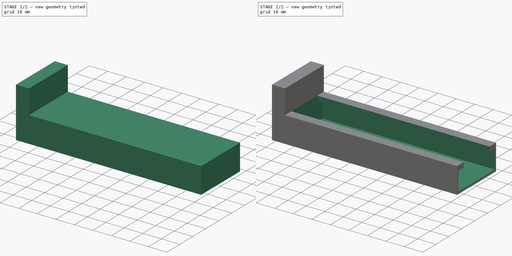
[diagram: build sequence overview — one tinted view per stage of 2, left to right]
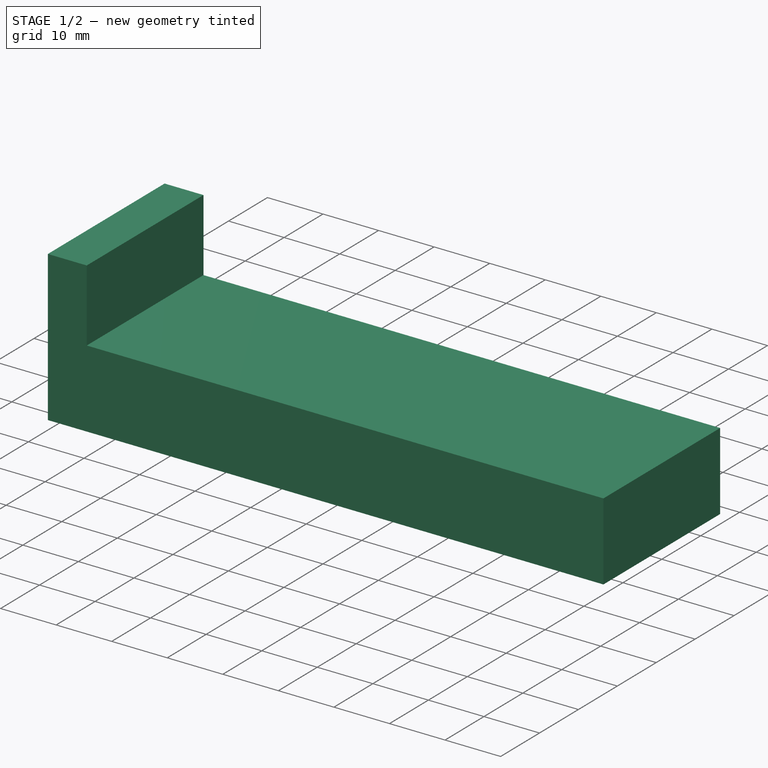
[diagram: stage 1 of 2 — iso view after this stage's code; geometry added in this stage tinted green]
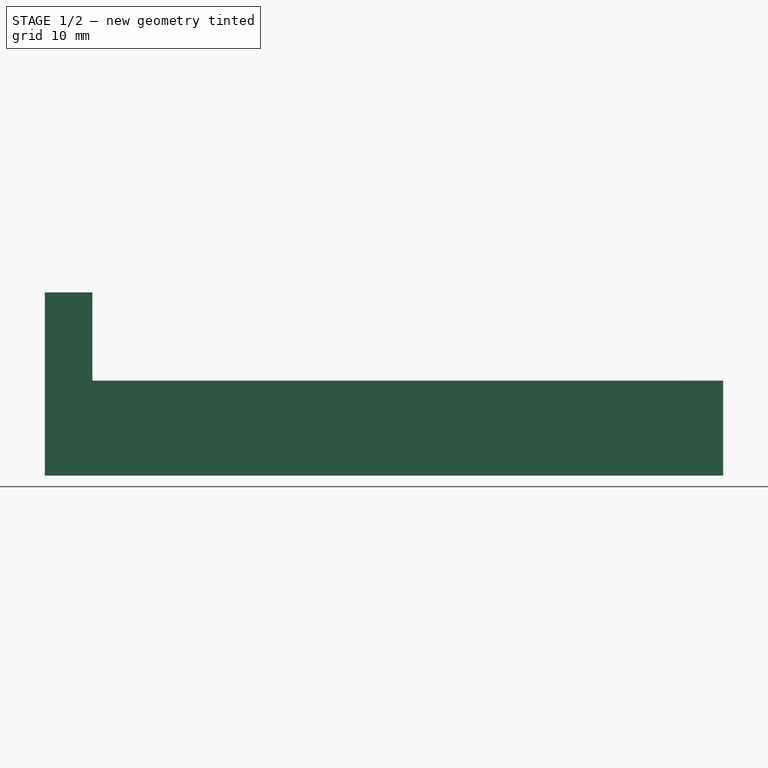
[diagram: stage 1 of 2 — front view after this stage's code; geometry added in this stage tinted green]
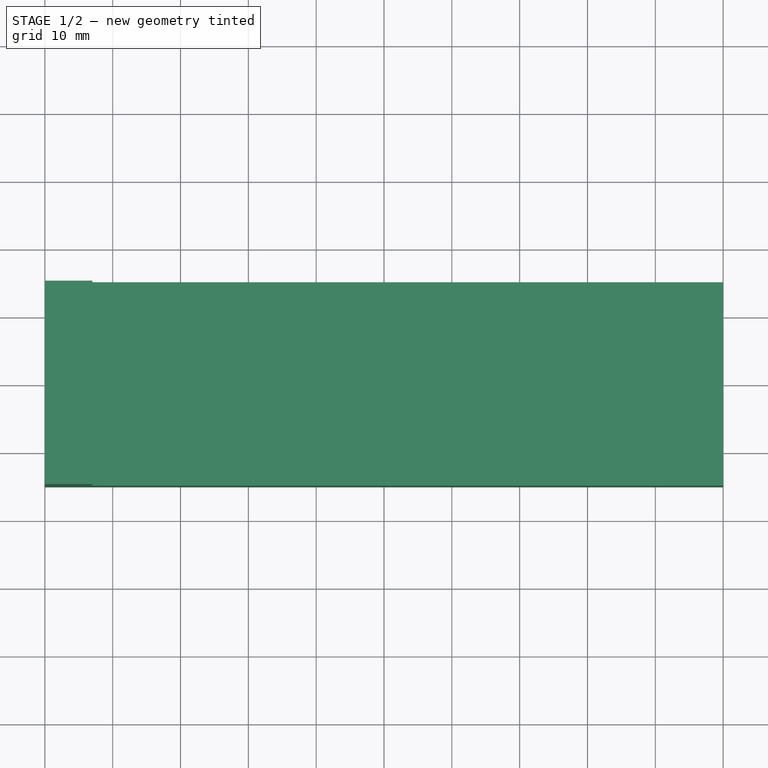
[diagram: stage 1 of 2 — top view after this stage's code; geometry added in this stage tinted green]
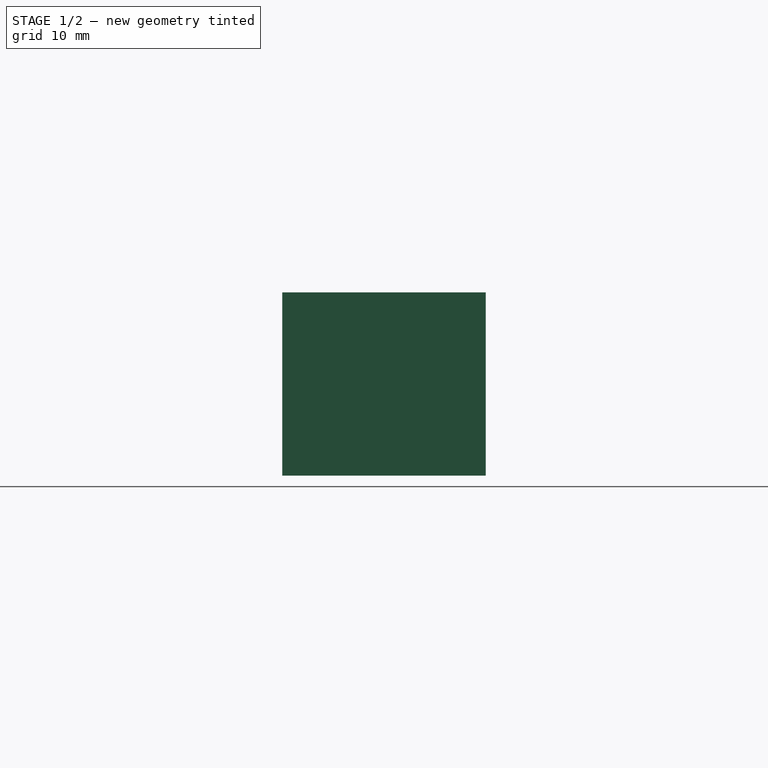
[diagram: stage 1 of 2 — right view after this stage's code; geometry added in this stage tinted green]
FCSTD DOCUMENT  (FreeCAD 1.0R39109 (Git))
Label: USBCPhoneHolder
License: All rights reserved
LicenseURL: https://en.wikipedia.org/wiki/All_rights_reserved
objects: Sketcher::SketchObject×3, PartDesign::Pad×3, PartDesign::Body×3, Spreadsheet::Sheet×2, Part::Part2DObjectPython×2, App::DocumentObjectGroup×1, PartDesign::Boolean×1
note: 22 computed .brp shape members not serialized (recipe doc carries the construction recipe); baked Part::Feature solids carry a one-line shape summary decoded from their .brp

FEATURE [Spreadsheet::Sheet] Spreadsheet001  label="SpreadsheetDimensions"
  cells = A1='Item; B1='Value; A2='PhoneClampWidth; B2(PhoneClampWidth)=100; A3='PhoneClampHeight; B3(PhoneClampHeight)==30 mm; A4='PhoneClampDepth; B4(PhoneClampDepth)==14 mm; A5='USBCClampWidth; B5(USBCClampWidth)==30 mm; A6='USBCClampHeight; B6(USBCClampHeight)==20 mm; A7='USBClampDepth; B7(USBClampDepth)==14 mm; A8='PhoneClampPillarWidth; B8(PhoneClampPillarWidth)=7; A9='MoveSliderWidthHalf; B9(MoveSliderWidthHalf)==10 mm
FEATURE [Sketcher::SketchObject] Sketch
  ArcFitTolerance = 1e-06
  FullyConstrained = true
  MakeInternals = false
  expr: Constraints[2] = Spreadsheet001.PhoneClampWidth
  expr: Constraints[3] = Spreadsheet001.PhoneClampHeight
  sketch-geometry (7):
    g0: LineSegment StartX=0 StartY=-15 StartZ=0 EndX=0 EndY=15 EndZ=0
    g1: LineSegment StartX=-100 StartY=15 StartZ=0 EndX=-100 EndY=-15 EndZ=0
    g2: LineSegment StartX=-93 StartY=15 StartZ=0 EndX=-93 EndY=-15 EndZ=0
    g3: LineSegment StartX=-100 StartY=15 StartZ=0 EndX=-93 EndY=15 EndZ=0
    g4: LineSegment StartX=-93 StartY=15 StartZ=0 EndX=0 EndY=15 EndZ=0
    g5: LineSegment StartX=-100 StartY=-15 StartZ=0 EndX=-93 EndY=-15 EndZ=0
    g6: LineSegment StartX=-93 StartY=-15 StartZ=0 EndX=0 EndY=-15 EndZ=0
  constraints (19):
    c: Vertical(g0)
    c: Vertical(g1)
    c: DistanceX(g1,g0) = 100
    c: DistanceY(g0,g0) = 30
    c: Symmetric(g0,g0,g-1)
    c: Vertical(g2)
    c: DistanceX(g1,g2) = 7
    c: Coincident(g3,g1)
    c: Coincident(g3,g2)
    c: Horizontal(g3)
    c: Coincident(g4,g2)
    c: Coincident(g4,g0)
    c: Horizontal(g4)
    c: Coincident(g5,g1)
    c: Coincident(g5,g2)
    c: Horizontal(g5)
    c: Coincident(g6,g2)
    c: Coincident(g6,g0)
    c: Horizontal(g6)
FEATURE [PartDesign::Pad] Pad
  Direction = (0,0,1)
  Length = 14
  Length2 = 10
  Profile = -> Sketch [Edge2,Edge5,Edge3,Edge7,Edge4,Edge1]
  ReferenceAxis = -> Sketch [N_Axis]
  Refine = true
  Suppressed = false
  Type = 0
  expr: Length = Spreadsheet001.PhoneClampDepth
FEATURE [PartDesign::Pad] Pad001  label="LeftBody"
  BaseFeature = -> Pad
  Direction = (0,0,1)
  Length = 27.02
  Length2 = 10
  Profile = -> Sketch [Edge6,Edge5,Edge3,Edge4]
  ReferenceAxis = -> Sketch [N_Axis]
  Refine = true
  Suppressed = false
  Type = 0
  expr: Length = Spreadsheet001.PhoneClampDepth * 1.93
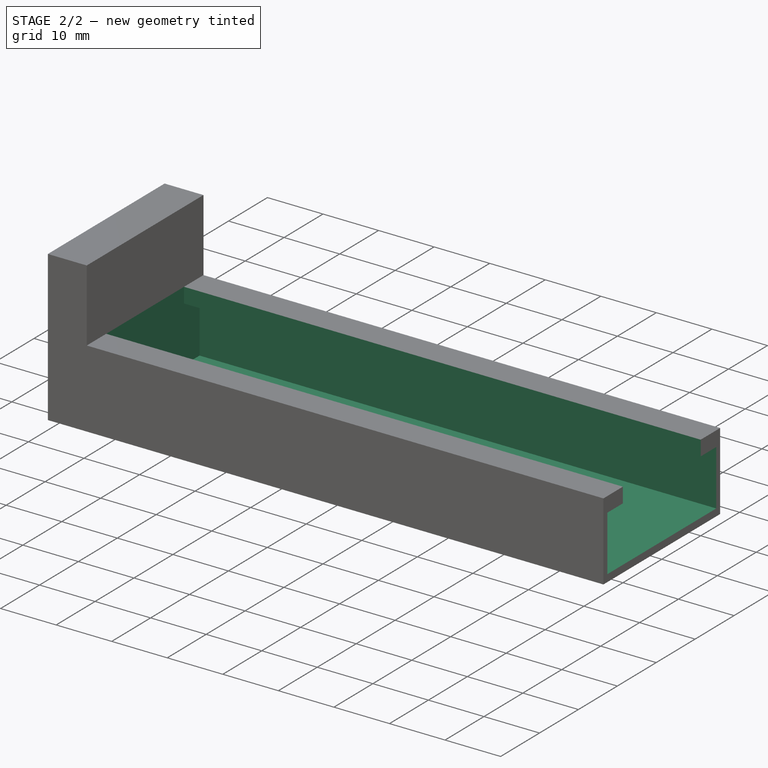
[diagram: stage 2 of 2 — iso view after this stage's code; geometry added in this stage tinted green]
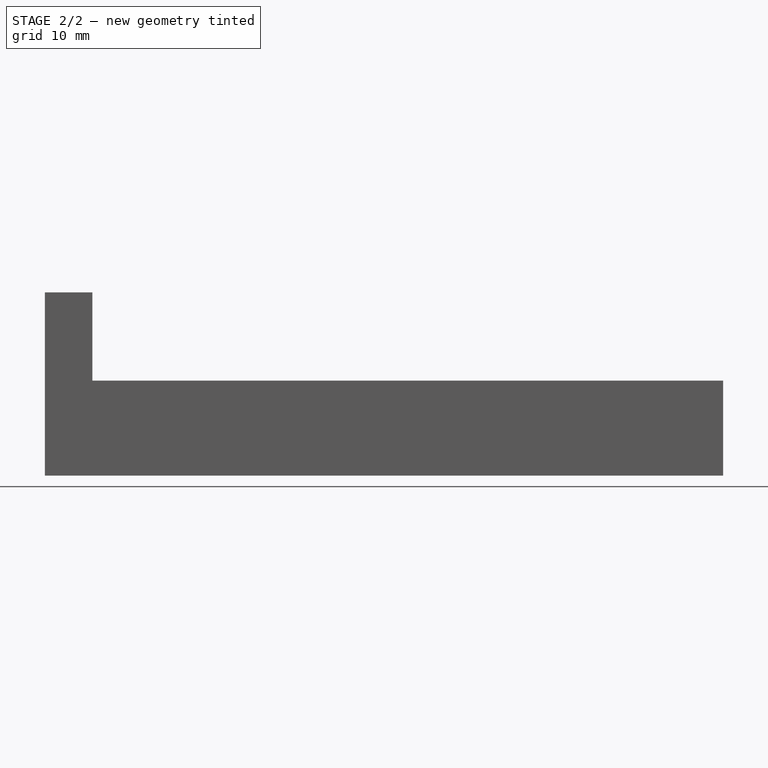
[diagram: stage 2 of 2 — front view after this stage's code; geometry added in this stage tinted green]
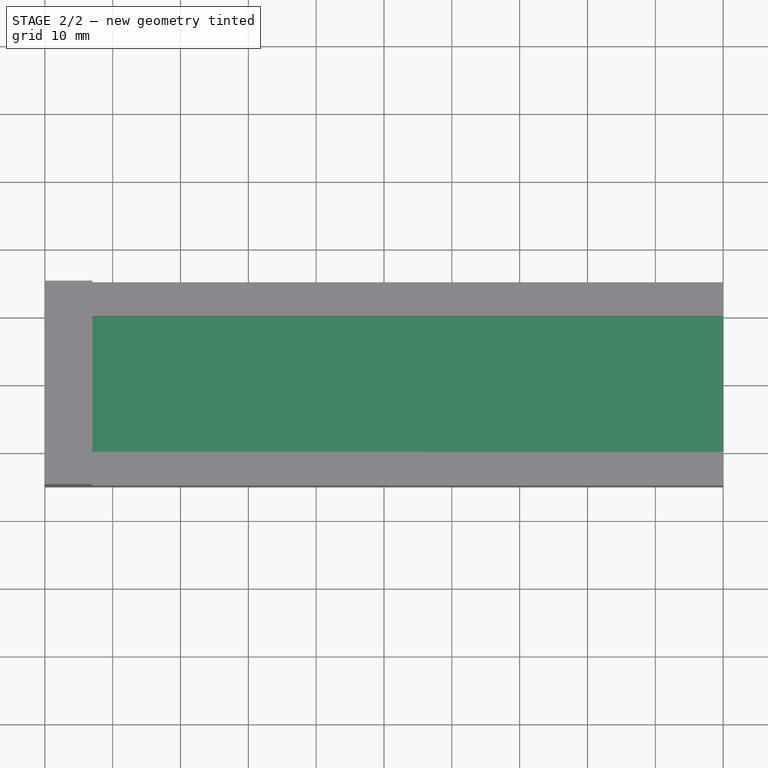
[diagram: stage 2 of 2 — top view after this stage's code; geometry added in this stage tinted green]
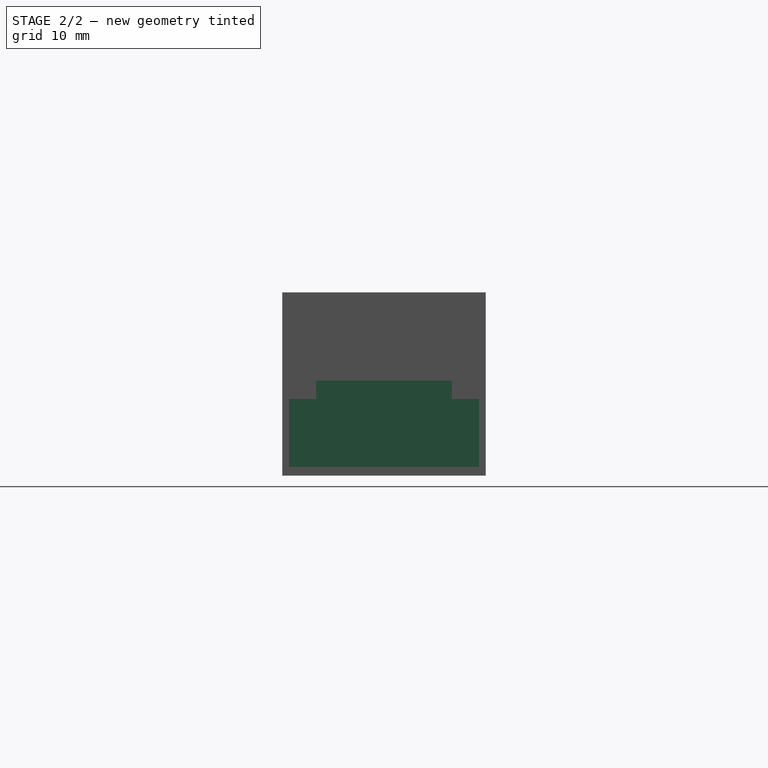
[diagram: stage 2 of 2 — right view after this stage's code; geometry added in this stage tinted green]
FEATURE [Sketcher::SketchObject] Sketch002  label="ProfileStationaryCut"
  ArcFitTolerance = 1e-06
  ExternalGeometry = -> [Pad001]
  FullyConstrained = true
  MakeInternals = false
  MapMode = 5
  Placement = pos=(0,0,0) rot=(0.57735,0.57735,0.57735;2.0944rad)
  sketch-geometry (9):
    g0: LineSegment StartX=-14 StartY=11.29 StartZ=0 EndX=-14 EndY=1.29 EndZ=0
    g1: LineSegment StartX=-14 StartY=1.29 StartZ=0 EndX=0 EndY=1.29 EndZ=0
    g2: LineSegment StartX=-10 StartY=11.29 StartZ=0 EndX=-14 EndY=11.29 EndZ=0
    g3: LineSegment StartX=-10 StartY=11.29 StartZ=0 EndX=-10 EndY=16.26 EndZ=0
    g4: LineSegment StartX=14 StartY=11.29 StartZ=0 EndX=14 EndY=1.29 EndZ=0
    g5: LineSegment StartX=14 StartY=1.29 StartZ=0 EndX=0 EndY=1.29 EndZ=0
    g6: LineSegment StartX=10 StartY=11.29 StartZ=0 EndX=14 EndY=11.29 EndZ=0
    g7: LineSegment StartX=10 StartY=11.29 StartZ=0 EndX=10 EndY=16.26 EndZ=0
    g8: LineSegment StartX=-10 StartY=16.26 StartZ=0 EndX=10 EndY=16.26 EndZ=0
  constraints (28):
    c: Horizontal(g1)
    c: DistanceY(g0,g0) = 10  'BottomSideLeft'
    c: DistanceY(g-1,g1) = 1.29  'OffsetFromBottom'
    c: Coincident(g2,g0)
    c: Horizontal(g2)
    c: DistanceX(g2,g2) = 4  'SideTop'
    c: Coincident(g3,g2)
    c: Vertical(g3)
    c: Coincident(g0,g1)
    c: Vertical(g0)
    c: PointOnObject(g1,g-2)
    c: DistanceX(g1,g1) = 14  'BottomL'
    c: DistanceY(g3,g3) = 4.97  'TopSideL'
    c: Horizontal(g5)
    c: Coincident(g6,g4)
    c: Horizontal(g6)
    c: Coincident(g7,g6)
    c: Vertical(g7)
    c: Coincident(g4,g5)
    c: Vertical(g4)
    c: Coincident(g8,g3)
    c: Coincident(g8,g7)
    c: Horizontal(g8)
    c: Equal(g3,g7)
    c: Equal(g2,g6)
    c: Equal(g0,g4)
    c: Equal(g1,g5)
    c: DistanceX(g8,g8) = 20  'TopL'
FEATURE [Spreadsheet::Sheet] Spreadsheet  label="SpreadsheetConstants"
  cells = A1='Material Tolerance; B1='Value; C1='Descriptor; A2='PLA; B2(PLA)==0.2 mm; C2='For example, if you have a 20mm length and 18mm width item, and you want to fit another item into this, subtract that from the width and height (so 19.8mm and 17.8mm)
FEATURE [Part::Part2DObjectPython] Clone2D  label="ProfileStationaryCut (2D)"  # Draft 2D object (typed FeaturePython)
  Fuse = false
  Objects = -> [Sketch002]
  Placement = pos=(0,0,0) rot=(0.57735,0.57735,0.57735;2.0944rad)
  Scale = (1,1,1)
FEATURE [Sketcher::SketchObject] Sketch003  label="AutoRatio_ProfileMovable"
  ArcFitTolerance = 1e-06
  ExternalGeometry = -> [Pad001]
  FullyConstrained = true
  MakeInternals = false
  MapMode = 5
  Placement = pos=(0,0,0) rot=(0.57735,0.57735,0.57735;2.0944rad)
  expr: .Constraints.BottomL = <<ProfileStationaryCut>>.Constraints.BottomL - Spreadsheet.PLA
  expr: .Constraints.BottomSideLeft = <<ProfileStationaryCut>>.Constraints.BottomSideLeft - Spreadsheet.PLA
  expr: .Constraints.OffsetFromBottom = <<ProfileStationaryCut>>.Constraints.OffsetFromBottom
  expr: .Constraints.SideTop = <<ProfileStationaryCut>>.Constraints.SideTop - Spreadsheet.PLA
  expr: .Constraints.TopL = <<ProfileStationaryCut>>.Constraints.TopL - Spreadsheet.PLA
  expr: .Constraints.TopSideL = Spreadsheet001.PhoneClampDepth * 1.93 - .Constraints.OffsetFromBottom - .Constraints.BottomSideLeft
  expr: Constraints[33] = Spreadsheet001.PhoneClampDepth * 1.93 - .Constraints.OffsetFromBottom - .Constraints.TopSideL - Spreadsheet.PLA - .Constraints.BottomSideLeft - Spreadsheet.PLA
  sketch-geometry (11):
    g0: LineSegment StartX=-13.8 StartY=11.09 StartZ=0 EndX=-13.8 EndY=1.29 EndZ=0
    g1: LineSegment StartX=-13.8 StartY=1.29 StartZ=0 EndX=0 EndY=1.29 EndZ=0
    g2: LineSegment StartX=-10 StartY=11.09 StartZ=0 EndX=-13.8 EndY=11.09 EndZ=0
    g3: LineSegment StartX=-10 StartY=11.09 StartZ=0 EndX=-10 EndY=27.02 EndZ=0
    g4: LineSegment StartX=13.6 StartY=11.09 StartZ=0 EndX=13.6 EndY=1.29 EndZ=0
    g5: LineSegment StartX=13.6 StartY=1.29 StartZ=0 EndX=-0.2 EndY=1.29 EndZ=0
    g6: LineSegment StartX=9.8 StartY=11.09 StartZ=0 EndX=13.6 EndY=11.09 EndZ=0
    g7: LineSegment StartX=9.8 StartY=11.09 StartZ=0 EndX=9.8 EndY=27.02 EndZ=0
    g8: LineSegment StartX=-10 StartY=27.02 StartZ=0 EndX=9.8 EndY=27.02 EndZ=0
    g9: LineSegment StartX=-10 StartY=27.02 StartZ=0 EndX=-10 EndY=26.62 EndZ=0
    g10: LineSegment StartX=9.8 StartY=27.02 StartZ=0 EndX=9.8 EndY=26.62 EndZ=0
  constraints (34):
    c: Horizontal(g1)
    c: DistanceY(g0,g0) = 9.8  'BottomSideLeft'
    c: DistanceY(g-1,g1) = 1.29  'OffsetFromBottom'
    c: Coincident(g2,g0)
    c: Horizontal(g2)
    c: DistanceX(g2,g2) = 3.8  'SideTop'
    c: Coincident(g3,g2)
    c: Vertical(g3)
    c: Coincident(g0,g1)
    c: Vertical(g0)
    c: PointOnObject(g1,g-2)
    c: DistanceX(g1,g1) = 13.8  'BottomL'
    c: DistanceY(g3,g3) = 15.93  'TopSideL'
    c: Horizontal(g5)
    c: Coincident(g6,g4)
    c: Horizontal(g6)
    c: Coincident(g7,g6)
    c: Vertical(g7)
    c: Coincident(g4,g5)
    c: Vertical(g4)
    c: Coincident(g8,g3)
    c: Coincident(g8,g7)
    c: Horizontal(g8)
    c: Equal(g3,g7)
    c: Equal(g2,g6)
    c: Equal(g0,g4)
    c: Equal(g1,g5)
    c: DistanceX(g8,g8) = 19.8  'TopL'
    c: Coincident(g9,g3)
    c: Vertical(g9)
    c: Coincident(g10,g7)
    c: Vertical(g10)
    c: Equal(g9,g10)
    c: DistanceY(g9,g9) = -0.4
FEATURE [App::DocumentObjectGroup] Group  label="ProfileTemplates"
  Group = -> [Sketch002,Sketch003]
FEATURE [PartDesign::Pad] Pad002
  Direction = (1,0,0)
  Length = 93
  Length2 = 10
  Placement = pos=(0,0,0) rot=(0.57735,0.57735,0.57735;2.0944rad)
  Profile = -> Clone2D
  ReferenceAxis = -> Clone2D [N_Axis]
  Refine = true
  Reversed = true
  Suppressed = false
  Type = 0
  expr: Length = Spreadsheet001.PhoneClampWidth - Spreadsheet001.PhoneClampPillarWidth
FEATURE [PartDesign::Body] Body001  label="PhoneClampSubtract"
  AllowCompound = false
  Group = -> [Clone2D,Pad002]
  Origin = -> Origin001
  Tip = -> Pad002
FEATURE [PartDesign::Boolean] Boolean
  BaseFeature = -> Pad001
  Group = -> [Body001]
  Refine = true
  Suppressed = false
  Type = 1
  UsePlacement = true
FEATURE [PartDesign::Body] Body  label="PhoneClampLeftStationary"
  AllowCompound = false
  Group = -> [Sketch,Pad,Pad001,Boolean]
  Origin = -> Origin
  Tip = -> Boolean
FEATURE [Part::Part2DObjectPython] Clone2D001  label="AutoRatio_ProfileMovable (2D)"  # Draft 2D object (typed FeaturePython)
  Fuse = false
  Objects = -> [Sketch003]
  Placement = pos=(0,0,0) rot=(0.57735,0.57735,0.57735;2.0944rad)
  Scale = (1,1,1)
FEATURE [PartDesign::Body] Body002  label="PhoneClampMovable"
  AllowCompound = false
  Group = -> [Clone2D001]
  Origin = -> Origin002
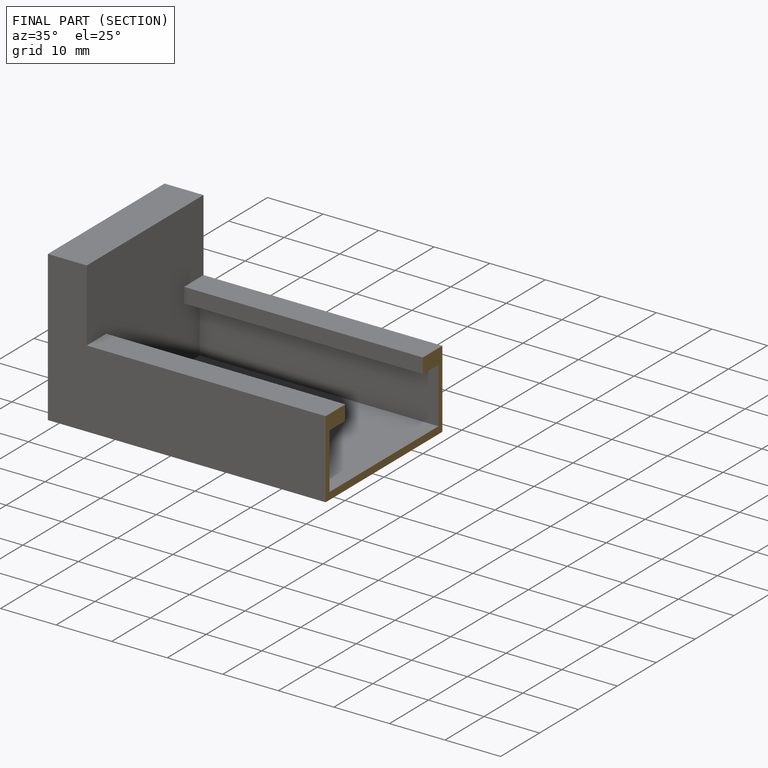
[diagram: finished part — half-section view (interior)]
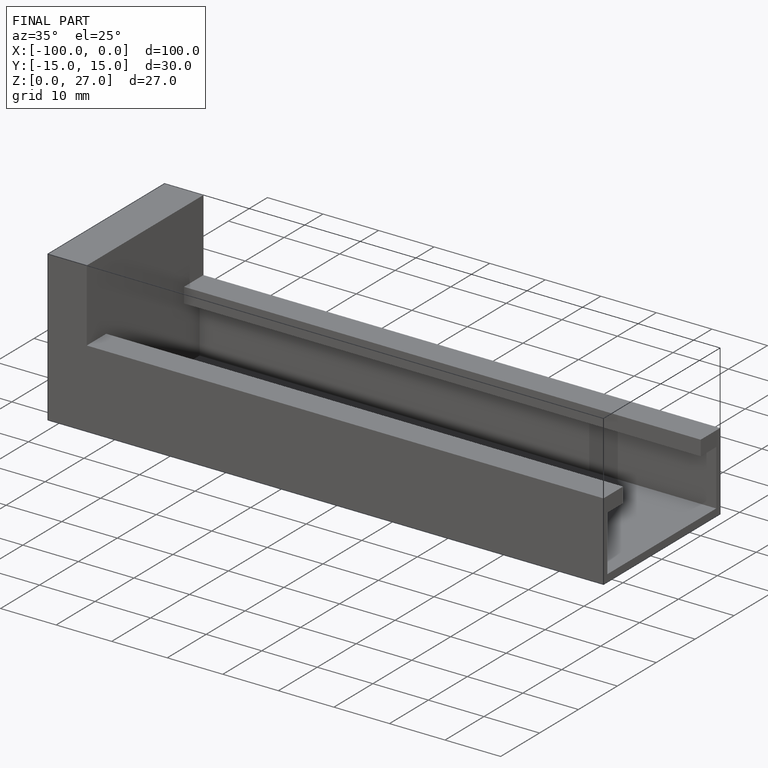
[diagram: finished part — iso view with bounding-box wireframe]
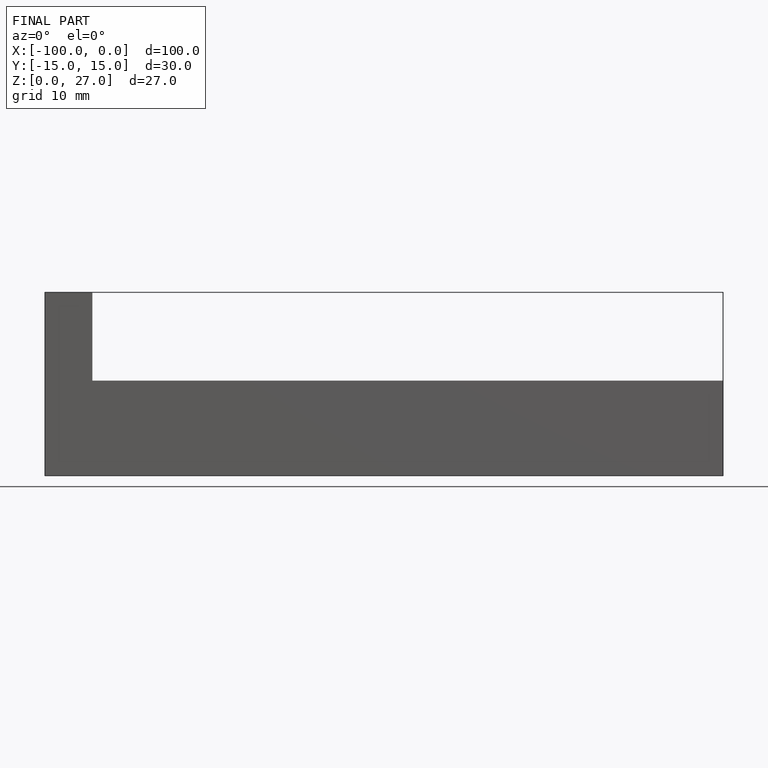
[diagram: finished part — front view with bounding-box wireframe]
